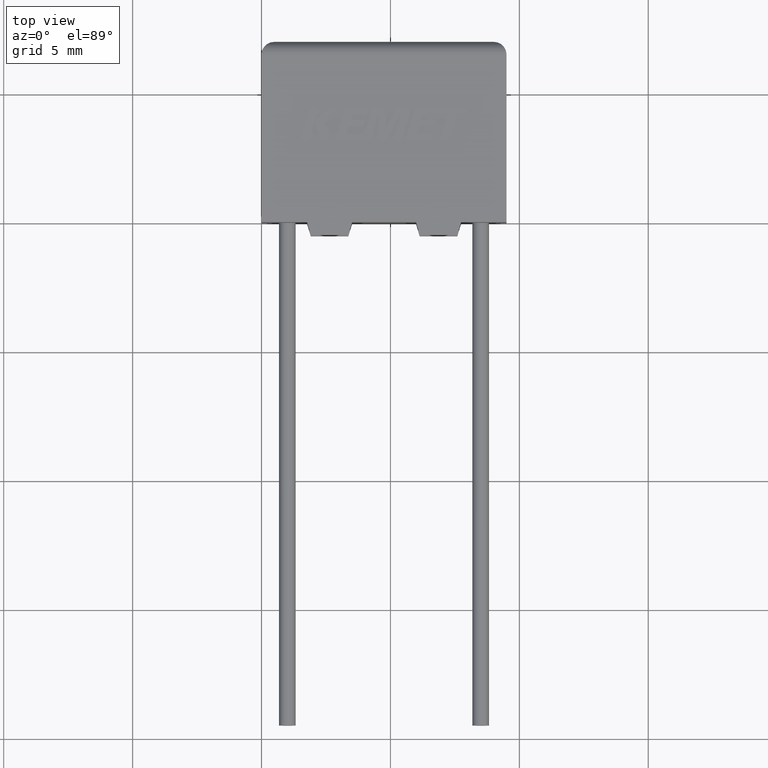
[diagram: clean part render]
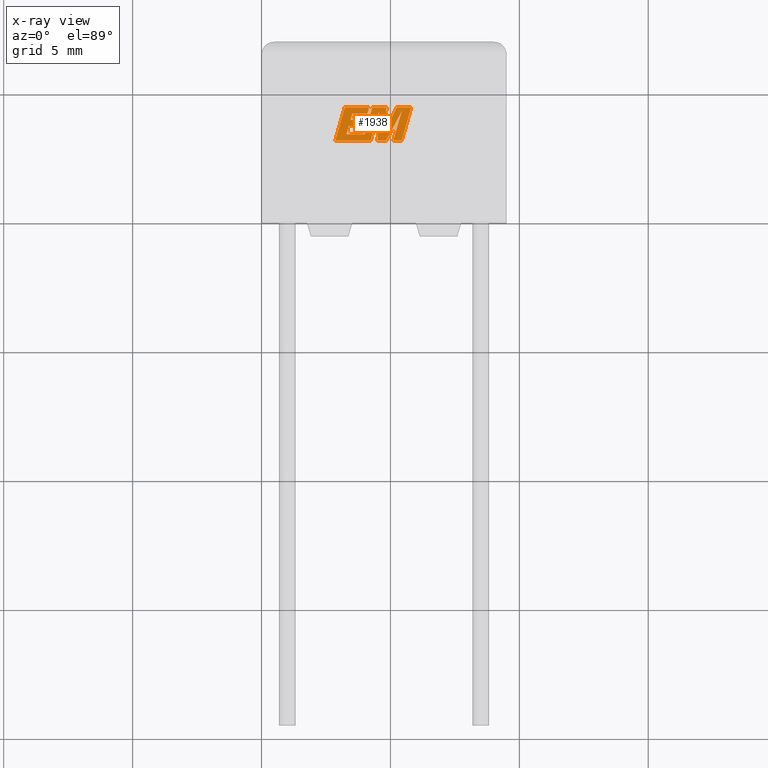
[diagram: x-ray — body ghosted, one internal face saturated and labeled with its STEP entity id]
A machine part, top view, then the same camera in x-ray: the body is ghosted and one INTERNAL B-rep face — a face not visible from any outside direction — is saturated and labeled: STEP entity #1938.
In plain terms, the highlighted planar face has unit normal (0, 0, -1).
Its self-contained STEP definition (entity closure, byte-faithful):
#3 = VECTOR ( 'NONE', #2844, 1000.000000000000100 ) ;
#9 = CARTESIAN_POINT ( 'NONE',  ( 2.859418183860302800, 3.166099999999958800, 3.500000000000000000 ) ) ;
#17 = CARTESIAN_POINT ( 'NONE',  ( 4.170185533474596100, 4.442996107114992400, 3.500000000000000000 ) ) ;
#20 = DIRECTION ( 'NONE',  ( 1.000000000000000000, 0.0000000000000000000, 0.0000000000000000000 ) ) ;
#32 = DIRECTION ( 'NONE',  ( 0.4668459304955212000, 0.8843386665637610300, 0.0000000000000000000 ) ) ;
#44 = CARTESIAN_POINT ( 'NONE',  ( 4.838121444672152500, 3.166099999999960200, 3.500000000000000000 ) ) ;
#51 = DIRECTION ( 'NONE',  ( -0.2762517575166160700, -0.9610853065513907900, 0.0000000000000000000 ) ) ;
#53 = EDGE_CURVE ( 'NONE', #1643, #2052, #1236, .T. ) ;
#128 = ORIENTED_EDGE ( 'NONE', *, *, #880, .F. ) ;
#133 = ORIENTED_EDGE ( 'NONE', *, *, #840, .F. ) ;
#134 = ORIENTED_EDGE ( 'NONE', *, *, #2347, .F. ) ;
#140 = CARTESIAN_POINT ( 'NONE',  ( 3.450277998326626500, 3.962443015533084500, 3.500000000000000000 ) ) ;
#142 = EDGE_CURVE ( 'NONE', #2424, #2877, #1428, .T. ) ;
#158 = EDGE_CURVE ( 'NONE', #2140, #1318, #2609, .T. ) ;
#251 = DIRECTION ( 'NONE',  ( 1.000000000000000000, 4.833865254349439700E-015, 0.0000000000000000000 ) ) ;
#273 = AXIS2_PLACEMENT_3D ( 'NONE', #861, #2625, #1115 ) ;
#288 = CARTESIAN_POINT ( 'NONE',  ( 4.497712361829270500, 3.166099999999960200, 3.500000000000000000 ) ) ;
#325 = VERTEX_POINT ( 'NONE', #1133 ) ;
#328 = CARTESIAN_POINT ( 'NONE',  ( 4.561432537789317000, 4.302887041198026500, 3.500000000000000000 ) ) ;
#351 = DIRECTION ( 'NONE',  ( 1.000000000000000000, 0.0000000000000000000, 0.0000000000000000000 ) ) ;
#357 = VECTOR ( 'NONE', #1059, 1000.000000000000200 ) ;
#362 = VERTEX_POINT ( 'NONE', #1632 ) ;
#366 = EDGE_LOOP ( 'NONE', ( #3196, #128, #1863, #1701, #2495, #2131, #2433, #134, #569, #2013, #2360, #1981, #1736, #1105, #1114, #702, #1223, #2082, #1815, #760, #1968, #662, #133 ) ) ;
#367 = CARTESIAN_POINT ( 'NONE',  ( 3.382931534018605900, 3.726388727319302600, 3.500000000000000000 ) ) ;
#381 = DIRECTION ( 'NONE',  ( 0.2793947940878287500, 0.9601763114327596100, 0.0000000000000000000 ) ) ;
#396 = CARTESIAN_POINT ( 'NONE',  ( 5.804702003179045300, 4.442996107114992400, 3.500000000000000000 ) ) ;
#411 = VECTOR ( 'NONE', #1298, 1000.000000000000000 ) ;
#423 = VERTEX_POINT ( 'NONE', #2624 ) ;
#503 = LINE ( 'NONE', #288, #2784 ) ;
#522 = EDGE_CURVE ( 'NONE', #1782, #686, #503, .T. ) ;
#531 = VECTOR ( 'NONE', #2940, 1000.000000000000000 ) ;
#545 = CARTESIAN_POINT ( 'NONE',  ( 4.235027761227294200, 3.166099999999960200, 3.500000000000000000 ) ) ;
#569 = ORIENTED_EDGE ( 'NONE', *, *, #1764, .F. ) ;
#579 = LINE ( 'NONE', #1921, #2364 ) ;
#593 = EDGE_CURVE ( 'NONE', #686, #1964, #1965, .T. ) ;
#609 = DIRECTION ( 'NONE',  ( -1.000000000000000000, 0.0000000000000000000, 0.0000000000000000000 ) ) ;
#662 = ORIENTED_EDGE ( 'NONE', *, *, #2145, .F. ) ;
#663 = EDGE_CURVE ( 'NONE', #2125, #2135, #1495, .T. ) ;
#686 = VERTEX_POINT ( 'NONE', #2621 ) ;
#698 = EDGE_CURVE ( 'NONE', #1292, #325, #1227, .T. ) ;
#699 = VECTOR ( 'NONE', #2025, 1000.000000000000000 ) ;
#702 = ORIENTED_EDGE ( 'NONE', *, *, #1935, .F. ) ;
#750 = LINE ( 'NONE', #2590, #3 ) ;
#752 = VECTOR ( 'NONE', #2542, 1000.000000000000000 ) ;
#760 = ORIENTED_EDGE ( 'NONE', *, *, #3228, .F. ) ;
#840 = EDGE_CURVE ( 'NONE', #325, #362, #1177, .T. ) ;
#853 = VECTOR ( 'NONE', #1591, 1000.000000000000200 ) ;
#861 = CARTESIAN_POINT ( 'NONE',  ( 0.04312138960717629800, -3.919304190165553400, 3.499999999999999100 ) ) ;
#877 = CARTESIAN_POINT ( 'NONE',  ( 3.450277998326626500, 3.962443015533084500, 3.500000000000000000 ) ) ;
#879 = CARTESIAN_POINT ( 'NONE',  ( 3.930912623157625200, 3.726388727319302600, 3.500000000000000000 ) ) ;
#880 = EDGE_CURVE ( 'NONE', #2052, #1292, #579, .T. ) ;
#965 = CARTESIAN_POINT ( 'NONE',  ( 5.113105918381671200, 3.166099999999960200, 3.500000000000000000 ) ) ;
#1049 = CARTESIAN_POINT ( 'NONE',  ( 5.437584957234608200, 3.166099999999960200, 3.500000000000000000 ) ) ;
#1052 = EDGE_CURVE ( 'NONE', #423, #1951, #1325, .T. ) ;
#1059 = DIRECTION ( 'NONE',  ( 0.2740217765954066100, 0.9617234872620595800, 0.0000000000000000000 ) ) ;
#1088 = EDGE_CURVE ( 'NONE', #2652, #1422, #1480, .T. ) ;
#1089 = CARTESIAN_POINT ( 'NONE',  ( 4.000347891670146300, 3.409030258946482500, 3.500000000000000000 ) ) ;
#1105 = ORIENTED_EDGE ( 'NONE', *, *, #2988, .F. ) ;
#1114 = ORIENTED_EDGE ( 'NONE', *, *, #1052, .F. ) ;
#1115 = DIRECTION ( 'NONE',  ( -1.000000000000000000, 0.0000000000000000000, 0.0000000000000000000 ) ) ;
#1133 = CARTESIAN_POINT ( 'NONE',  ( 5.244664055122066200, 4.442996107114992400, 3.500000000000000000 ) ) ;
#1148 = CARTESIAN_POINT ( 'NONE',  ( 5.441125829795740100, 4.308361416536843800, 3.500000000000000000 ) ) ;
#1177 = LINE ( 'NONE', #1941, #531 ) ;
#1216 = EDGE_CURVE ( 'NONE', #1318, #3078, #2830, .T. ) ;
#1221 = CARTESIAN_POINT ( 'NONE',  ( 4.297548234679902100, 4.442996107114992400, 3.500000000000000000 ) ) ;
#1223 = ORIENTED_EDGE ( 'NONE', *, *, #663, .F. ) ;
#1227 = LINE ( 'NONE', #396, #2556 ) ;
#1236 = LINE ( 'NONE', #965, #3142 ) ;
#1254 = VECTOR ( 'NONE', #2373, 1000.000000000000200 ) ;
#1272 = VECTOR ( 'NONE', #1295, 1000.000000000000000 ) ;
#1289 = CARTESIAN_POINT ( 'NONE',  ( 4.000347891670146300, 3.409030258946482500, 3.500000000000000000 ) ) ;
#1292 = VERTEX_POINT ( 'NONE', #3004 ) ;
#1295 = DIRECTION ( 'NONE',  ( 1.000000000000000000, 0.0000000000000000000, 0.0000000000000000000 ) ) ;
#1298 = DIRECTION ( 'NONE',  ( -1.000000000000000000, 0.0000000000000000000, 0.0000000000000000000 ) ) ;
#1306 = CARTESIAN_POINT ( 'NONE',  ( 4.297548234679902100, 4.442996107114992400, 3.500000000000000000 ) ) ;
#1310 = DIRECTION ( 'NONE',  ( -1.000000000000000000, 0.0000000000000000000, 0.0000000000000000000 ) ) ;
#1314 = CARTESIAN_POINT ( 'NONE',  ( 4.170185533474596100, 4.442996107114992400, 3.500000000000000000 ) ) ;
#1318 = VERTEX_POINT ( 'NONE', #2755 ) ;
#1319 = CARTESIAN_POINT ( 'NONE',  ( 5.441125829795740100, 4.308361416536843800, 3.500000000000000000 ) ) ;
#1325 = LINE ( 'NONE', #1763, #2153 ) ;
#1327 = CARTESIAN_POINT ( 'NONE',  ( 3.382931534018605900, 3.726388727319302600, 3.500000000000000000 ) ) ;
#1367 = LINE ( 'NONE', #1306, #1553 ) ;
#1374 = LINE ( 'NONE', #17, #699 ) ;
#1422 = VERTEX_POINT ( 'NONE', #2864 ) ;
#1425 = LINE ( 'NONE', #2985, #2786 ) ;
#1428 = LINE ( 'NONE', #1784, #752 ) ;
#1480 = LINE ( 'NONE', #1289, #411 ) ;
#1484 = LINE ( 'NONE', #877, #1984 ) ;
#1495 = LINE ( 'NONE', #367, #1663 ) ;
#1522 = LINE ( 'NONE', #2066, #853 ) ;
#1540 = VECTOR ( 'NONE', #2705, 1000.000000000000000 ) ;
#1551 = CARTESIAN_POINT ( 'NONE',  ( 3.292507277490678500, 3.409030258946482500, 3.500000000000000000 ) ) ;
#1553 = VECTOR ( 'NONE', #51, 1000.000000000000000 ) ;
#1580 = VECTOR ( 'NONE', #3033, 1000.000000000000100 ) ;
#1591 = DIRECTION ( 'NONE',  ( 0.2759782365590801000, 0.9611638845408936300, 0.0000000000000000000 ) ) ;
#1592 = CARTESIAN_POINT ( 'NONE',  ( 3.519387133843796500, 4.199945489563877000, 3.500000000000000000 ) ) ;
#1617 = EDGE_CURVE ( 'NONE', #1668, #2742, #2565, .T. ) ;
#1632 = CARTESIAN_POINT ( 'NONE',  ( 4.792227338743759700, 3.530765122089830400, 3.500000000000000000 ) ) ;
#1643 = VERTEX_POINT ( 'NONE', #1866 ) ;
#1663 = VECTOR ( 'NONE', #351, 1000.000000000000000 ) ;
#1668 = VERTEX_POINT ( 'NONE', #2382 ) ;
#1683 = EDGE_CURVE ( 'NONE', #3044, #1782, #750, .T. ) ;
#1701 = ORIENTED_EDGE ( 'NONE', *, *, #2072, .F. ) ;
#1710 = CARTESIAN_POINT ( 'NONE',  ( 3.226857481293508000, 4.442996107114992400, 3.500000000000000000 ) ) ;
#1736 = ORIENTED_EDGE ( 'NONE', *, *, #158, .F. ) ;
#1738 = DIRECTION ( 'NONE',  ( 1.000000000000000000, 0.0000000000000000000, 0.0000000000000000000 ) ) ;
#1763 = CARTESIAN_POINT ( 'NONE',  ( 3.998336738179655300, 3.962443015533084500, 3.500000000000000000 ) ) ;
#1764 = EDGE_CURVE ( 'NONE', #2742, #3185, #1425, .T. ) ;
#1782 = VERTEX_POINT ( 'NONE', #2000 ) ;
#1784 = CARTESIAN_POINT ( 'NONE',  ( 4.841333111737835500, 4.442996107114992400, 3.500000000000000000 ) ) ;
#1815 = ORIENTED_EDGE ( 'NONE', *, *, #1088, .F. ) ;
#1863 = ORIENTED_EDGE ( 'NONE', *, *, #53, .F. ) ;
#1866 = CARTESIAN_POINT ( 'NONE',  ( 5.113105918381671200, 3.166099999999960200, 3.500000000000000000 ) ) ;
#1891 = FACE_OUTER_BOUND ( 'NONE', #366, .T. ) ;
#1921 = CARTESIAN_POINT ( 'NONE',  ( 5.437584957234608200, 3.166099999999960200, 3.500000000000000000 ) ) ;
#1929 = VECTOR ( 'NONE', #32, 1000.000000000000000 ) ;
#1935 = EDGE_CURVE ( 'NONE', #2135, #423, #3252, .T. ) ;
#1938 = ADVANCED_FACE ( 'NONE', ( #1891 ), #2117, .T. ) ;
#1941 = CARTESIAN_POINT ( 'NONE',  ( 5.244664055122066200, 4.442996107114992400, 3.500000000000000000 ) ) ;
#1951 = VERTEX_POINT ( 'NONE', #140 ) ;
#1964 = VERTEX_POINT ( 'NONE', #1148 ) ;
#1965 = LINE ( 'NONE', #44, #1929 ) ;
#1968 = ORIENTED_EDGE ( 'NONE', *, *, #142, .F. ) ;
#1981 = ORIENTED_EDGE ( 'NONE', *, *, #1216, .F. ) ;
#1984 = VECTOR ( 'NONE', #381, 1000.000000000000000 ) ;
#2000 = CARTESIAN_POINT ( 'NONE',  ( 4.497712361829270500, 3.166099999999960200, 3.500000000000000000 ) ) ;
#2013 = ORIENTED_EDGE ( 'NONE', *, *, #1617, .F. ) ;
#2025 = DIRECTION ( 'NONE',  ( -1.000000000000000000, 0.0000000000000000000, 0.0000000000000000000 ) ) ;
#2052 = VERTEX_POINT ( 'NONE', #1049 ) ;
#2062 = EDGE_CURVE ( 'NONE', #1422, #2125, #2746, .T. ) ;
#2066 = CARTESIAN_POINT ( 'NONE',  ( 4.235027761227294200, 3.166099999999960200, 3.500000000000000000 ) ) ;
#2072 = EDGE_CURVE ( 'NONE', #1964, #1643, #2936, .T. ) ;
#2082 = ORIENTED_EDGE ( 'NONE', *, *, #2062, .F. ) ;
#2117 = PLANE ( 'NONE',  #273 ) ;
#2125 = VERTEX_POINT ( 'NONE', #1327 ) ;
#2131 = ORIENTED_EDGE ( 'NONE', *, *, #522, .F. ) ;
#2135 = VERTEX_POINT ( 'NONE', #2824 ) ;
#2140 = VERTEX_POINT ( 'NONE', #1592 ) ;
#2145 = EDGE_CURVE ( 'NONE', #362, #2424, #2772, .T. ) ;
#2153 = VECTOR ( 'NONE', #1310, 1000.000000000000000 ) ;
#2159 = CARTESIAN_POINT ( 'NONE',  ( 4.841333111737835500, 4.442996107114992400, 3.500000000000000000 ) ) ;
#2182 = VECTOR ( 'NONE', #2814, 1000.000000000000000 ) ;
#2320 = VECTOR ( 'NONE', #2649, 1000.000000000000200 ) ;
#2347 = EDGE_CURVE ( 'NONE', #3185, #3044, #1522, .T. ) ;
#2360 = ORIENTED_EDGE ( 'NONE', *, *, #2732, .F. ) ;
#2364 = VECTOR ( 'NONE', #2438, 1000.000000000000200 ) ;
#2373 = DIRECTION ( 'NONE',  ( 0.05375259206908267900, 0.9985542843760947300, 0.0000000000000000000 ) ) ;
#2382 = CARTESIAN_POINT ( 'NONE',  ( 3.226857481293508000, 4.442996107114992400, 3.500000000000000000 ) ) ;
#2424 = VERTEX_POINT ( 'NONE', #2159 ) ;
#2433 = ORIENTED_EDGE ( 'NONE', *, *, #1683, .F. ) ;
#2438 = DIRECTION ( 'NONE',  ( 0.2763139702539115800, 0.9610674221107072800, 0.0000000000000000000 ) ) ;
#2495 = ORIENTED_EDGE ( 'NONE', *, *, #593, .F. ) ;
#2542 = DIRECTION ( 'NONE',  ( -1.000000000000000000, 0.0000000000000000000, 0.0000000000000000000 ) ) ;
#2556 = VECTOR ( 'NONE', #609, 1000.000000000000000 ) ;
#2565 = LINE ( 'NONE', #1710, #1540 ) ;
#2577 = CARTESIAN_POINT ( 'NONE',  ( 4.101154048671347100, 4.199945489563877000, 3.500000000000000000 ) ) ;
#2590 = CARTESIAN_POINT ( 'NONE',  ( 4.561432537789317000, 4.302887041198026500, 3.500000000000000000 ) ) ;
#2609 = LINE ( 'NONE', #2787, #1272 ) ;
#2621 = CARTESIAN_POINT ( 'NONE',  ( 4.838121444672152500, 3.166099999999960200, 3.500000000000000000 ) ) ;
#2624 = CARTESIAN_POINT ( 'NONE',  ( 3.998336738179655300, 3.962443015533084500, 3.500000000000000000 ) ) ;
#2625 = DIRECTION ( 'NONE',  ( 0.0000000000000000000, 0.0000000000000000000, -1.000000000000000000 ) ) ;
#2649 = DIRECTION ( 'NONE',  ( 0.2746459304916903900, 0.9615454294334477800, 0.0000000000000000000 ) ) ;
#2652 = VERTEX_POINT ( 'NONE', #1089 ) ;
#2705 = DIRECTION ( 'NONE',  ( -0.2765379750249960000, -0.9610029908221278100, 0.0000000000000000000 ) ) ;
#2732 = EDGE_CURVE ( 'NONE', #3078, #1668, #1374, .T. ) ;
#2742 = VERTEX_POINT ( 'NONE', #9 ) ;
#2746 = LINE ( 'NONE', #1551, #357 ) ;
#2755 = CARTESIAN_POINT ( 'NONE',  ( 4.101154048671347100, 4.199945489563877000, 3.500000000000000000 ) ) ;
#2772 = LINE ( 'NONE', #3067, #1254 ) ;
#2784 = VECTOR ( 'NONE', #20, 1000.000000000000000 ) ;
#2786 = VECTOR ( 'NONE', #251, 1000.000000000000000 ) ;
#2787 = CARTESIAN_POINT ( 'NONE',  ( 3.519387133843796500, 4.199945489563877000, 3.500000000000000000 ) ) ;
#2814 = DIRECTION ( 'NONE',  ( 0.2732148821745924400, 0.9619530280415585800, 0.0000000000000000000 ) ) ;
#2824 = CARTESIAN_POINT ( 'NONE',  ( 3.930912623157625200, 3.726388727319302600, 3.500000000000000000 ) ) ;
#2830 = LINE ( 'NONE', #2577, #2182 ) ;
#2844 = DIRECTION ( 'NONE',  ( -0.05596501978068205800, -0.9984327301130245800, 0.0000000000000000000 ) ) ;
#2864 = CARTESIAN_POINT ( 'NONE',  ( 3.292507277490678500, 3.409030258946482500, 3.500000000000000000 ) ) ;
#2877 = VERTEX_POINT ( 'NONE', #1221 ) ;
#2936 = LINE ( 'NONE', #1319, #1580 ) ;
#2940 = DIRECTION ( 'NONE',  ( -0.4443210308329058100, -0.8958676361827030400, 0.0000000000000000000 ) ) ;
#2985 = CARTESIAN_POINT ( 'NONE',  ( 4.007744121166371800, 3.166099999999958800, 3.500000000000000000 ) ) ;
#2988 = EDGE_CURVE ( 'NONE', #1951, #2140, #1484, .T. ) ;
#3004 = CARTESIAN_POINT ( 'NONE',  ( 5.804702003179045300, 4.442996107114992400, 3.500000000000000000 ) ) ;
#3033 = DIRECTION ( 'NONE',  ( -0.2760118818968562100, -0.9611542233438689100, 0.0000000000000000000 ) ) ;
#3044 = VERTEX_POINT ( 'NONE', #328 ) ;
#3067 = CARTESIAN_POINT ( 'NONE',  ( 4.792227338743759700, 3.530765122089830400, 3.500000000000000000 ) ) ;
#3078 = VERTEX_POINT ( 'NONE', #1314 ) ;
#3142 = VECTOR ( 'NONE', #1738, 1000.000000000000000 ) ;
#3185 = VERTEX_POINT ( 'NONE', #545 ) ;
#3196 = ORIENTED_EDGE ( 'NONE', *, *, #698, .F. ) ;
#3228 = EDGE_CURVE ( 'NONE', #2877, #2652, #1367, .T. ) ;
#3252 = LINE ( 'NONE', #879, #2320 ) ;